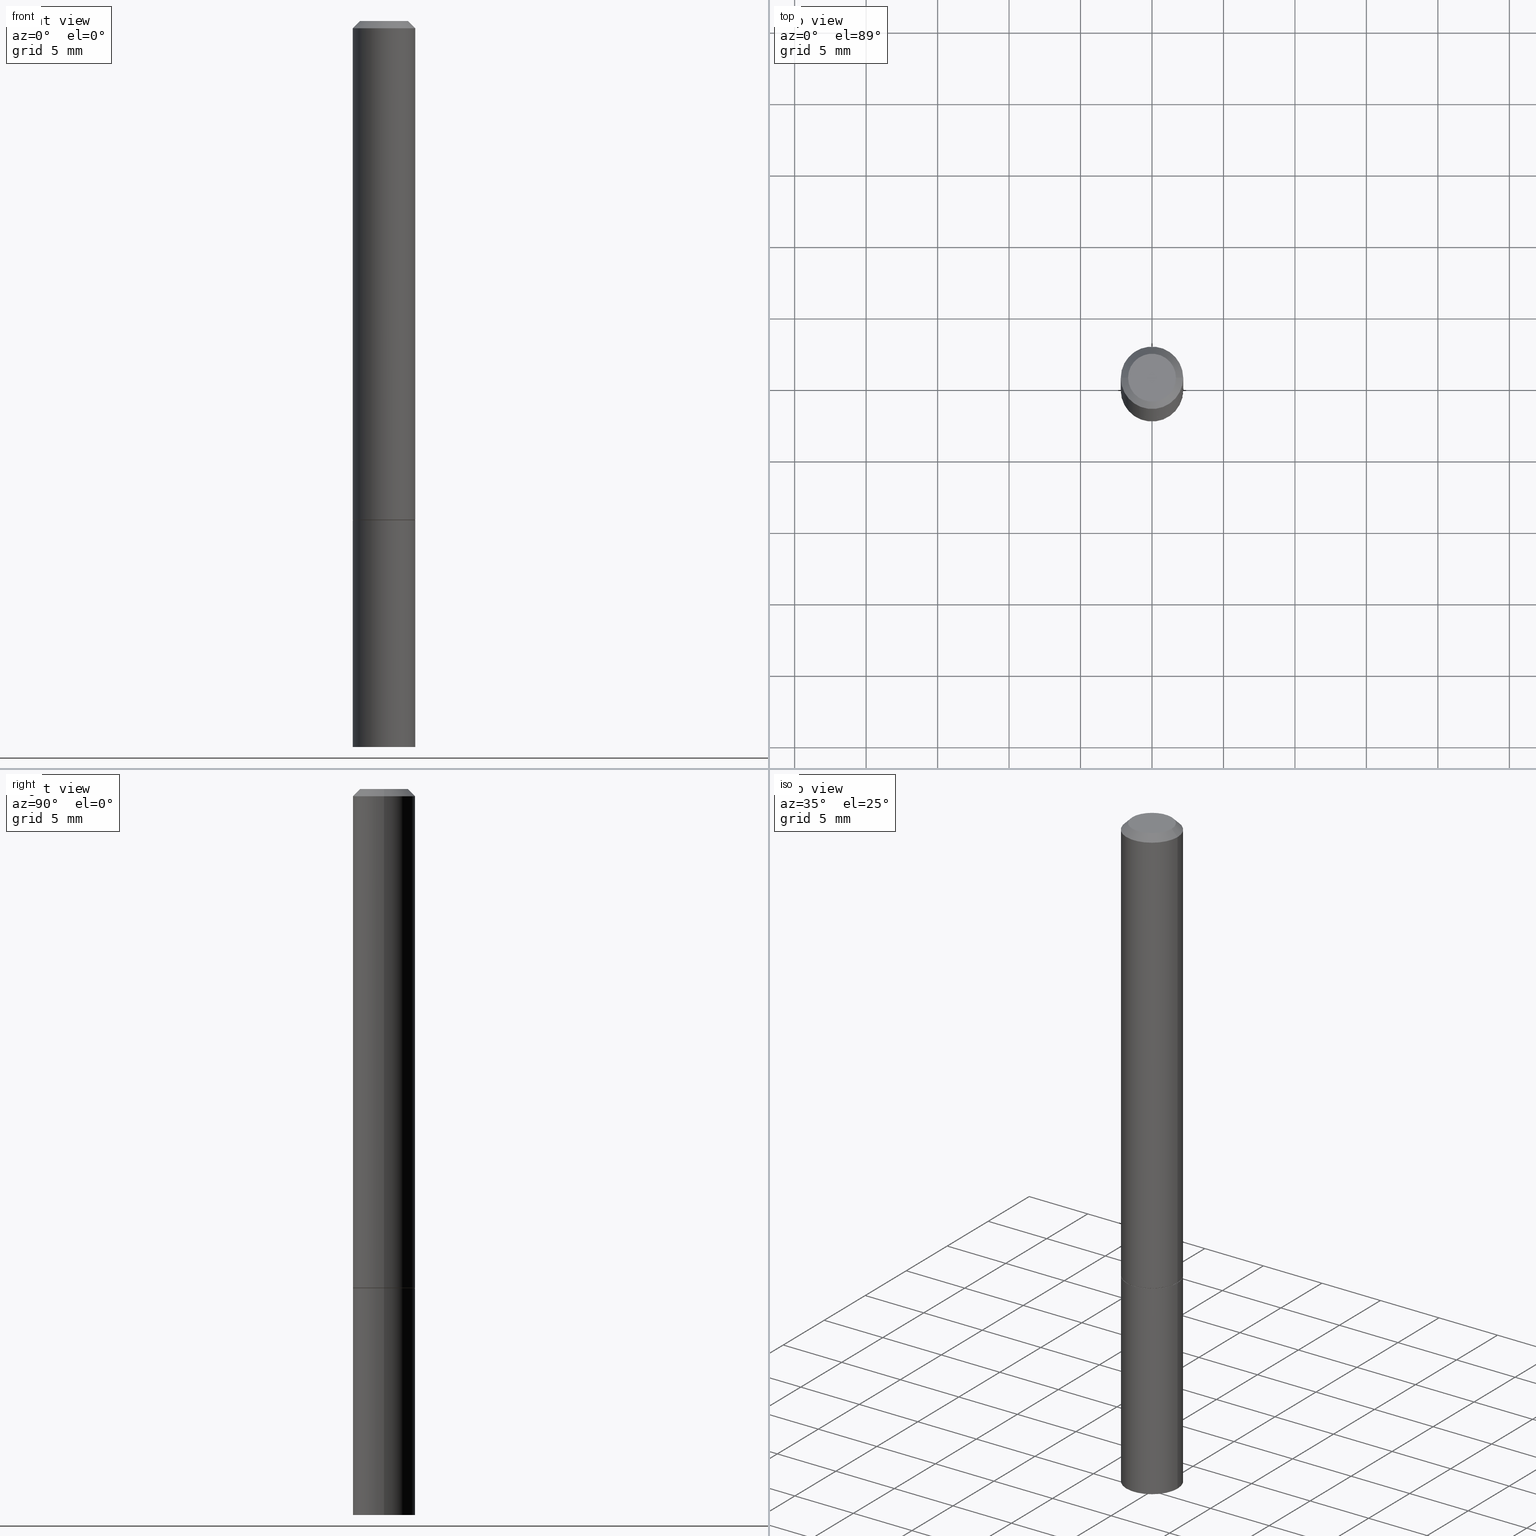
[diagram: canonical four-view strip — front | top / right | iso, engineering-drawing reading convention]
A machine part, canonical four-view strip (front | top / right | iso — engineering-drawing reading convention). The complete STEP part file that produces these views, byte-faithful:
ISO-10303-21;
HEADER;
FILE_DESCRIPTION (( 'STEP AP203' ),
    '1' );
FILE_NAME ('39121.STEP',
    '2023-03-21T20:54:11',
    ( '' ),
    ( '' ),
    'SwSTEP 2.0',
    'SolidWorks 2022',
    '' );
FILE_SCHEMA (( 'CONFIG_CONTROL_DESIGN' ));
ENDSEC;

DATA;
#1 = CARTESIAN_POINT ( 'NONE',  ( 4.879747805633000820E-29, -6.967485112831714072E-15, -1.995495551370623177 ) ) ;
#2 = AXIS2_PLACEMENT_3D ( 'NONE', #16, #259, #106 ) ;
#3 = APPROVAL_PERSON_ORGANIZATION ( #255, #283, #156 ) ;
#4 = APPROVAL_STATUS ( 'not_yet_approved' ) ;
#5 = EDGE_LOOP ( 'NONE', ( #346, #370, #188, #36 ) ) ;
#6 = APPLICATION_CONTEXT ( 'configuration controlled 3d designs of mechanical parts and assemblies' ) ;
#7 = PERSON_AND_ORGANIZATION_ROLE ( 'creator' ) ;
#8 = ORIENTED_EDGE ( 'NONE', *, *, #390, .F. ) ;
#9 = DATE_AND_TIME ( #46, #88 ) ;
#10 = ADVANCED_FACE ( 'NONE', ( #75 ), #275, .T. ) ;
#11 = CIRCLE ( 'NONE', #222, 0.08594999999999998475 ) ;
#12 = DIRECTION ( 'NONE',  ( 1.000000000000000000, -6.982962677686267499E-15, 4.876176775795935793E-29 ) ) ;
#13 = ORIENTED_EDGE ( 'NONE', *, *, #228, .T. ) ;
#14 = ADVANCED_FACE ( 'NONE', ( #194 ), #229, .F. ) ;
#15 = APPROVAL_STATUS ( 'not_yet_approved' ) ;
#16 = CARTESIAN_POINT ( 'NONE',  ( 4.890937612370278413E-31, -6.982962677686297772E-17, -0.02000000000000002123 ) ) ;
#17 = EDGE_CURVE ( 'NONE', #361, #313, #340, .T. ) ;
#18 = DIRECTION ( 'NONE',  ( -2.445468806185136877E-29, 3.491481338843145188E-15, 1.000000000000000000 ) ) ;
#19 = AXIS2_PLACEMENT_3D ( 'NONE', #184, #299, #210 ) ;
#20 = CARTESIAN_POINT ( 'NONE',  ( 0.000000000000000000, 0.000000000000000000, 0.000000000000000000 ) ) ;
#21 = ADVANCED_FACE ( 'NONE', ( #72 ), #318, .T. ) ;
#22 = CARTESIAN_POINT ( 'NONE',  ( -0.08594999999999981821, 5.303560153702704350E-16, -0.02000000000000002123 ) ) ;
#23 = LINE ( 'NONE', #74, #312 ) ;
#24 = CARTESIAN_POINT ( 'NONE',  ( 3.362519608504562260E-29, -4.800786840909324930E-15, -1.375000000000000000 ) ) ;
#25 = VECTOR ( 'NONE', #373, 39.37007874015748143 ) ;
#26 = CONICAL_SURFACE ( 'NONE', #171, 0.08594999999999981821, 0.7853981633974476129 ) ;
#27 = DIMENSIONAL_EXPONENTS ( 1.000000000000000000, 0.000000000000000000, 0.000000000000000000, 0.000000000000000000, 0.000000000000000000, 0.000000000000000000, 0.000000000000000000 ) ;
#28 = CARTESIAN_POINT ( 'NONE',  ( -0.08494999999999998386, -4.191882332532897633E-15, -1.375000000000000000 ) ) ;
#29 = DIRECTION ( 'NONE',  ( 1.000000000000000000, 0.000000000000000000, 0.000000000000000000 ) ) ;
#30 = DIRECTION ( 'NONE',  ( -1.000000000000000000, 6.982962677686265922E-15, -4.876176775795935793E-29 ) ) ;
#31 = ORIENTED_EDGE ( 'NONE', *, *, #292, .F. ) ;
#32 = AXIS2_PLACEMENT_3D ( 'NONE', #281, #277, #344 ) ;
#33 = AXIS2_PLACEMENT_3D ( 'NONE', #293, #180, #29 ) ;
#34 = DIRECTION ( 'NONE',  ( -2.445468806185136597E-29, 3.491481338843145583E-15, 1.000000000000000000 ) ) ;
#35 = ORIENTED_EDGE ( 'NONE', *, *, #17, .T. ) ;
#36 = ORIENTED_EDGE ( 'NONE', *, *, #143, .T. ) ;
#37 = PERSON_AND_ORGANIZATION_ROLE ( 'classification_officer' ) ;
#38 = ORIENTED_EDGE ( 'NONE', *, *, #130, .F. ) ;
#39 = CC_DESIGN_PERSON_AND_ORGANIZATION_ASSIGNMENT ( #311, #37, ( #290 ) ) ;
#40 = COORDINATED_UNIVERSAL_TIME_OFFSET ( 5, 0, .BEHIND. ) ;
#41 = ORIENTED_EDGE ( 'NONE', *, *, #315, .F. ) ;
#42 = CALENDAR_DATE ( 2023, 21, 3 ) ;
#43 = DIRECTION ( 'NONE',  ( 2.445468806185136597E-29, -3.491481338843145583E-15, -1.000000000000000000 ) ) ;
#44 = EDGE_CURVE ( 'NONE', #339, #313, #23, .T. ) ;
#45 = DATE_AND_TIME ( #152, #285 ) ;
#46 = CALENDAR_DATE ( 2023, 21, 3 ) ;
#47 = AXIS2_PLACEMENT_3D ( 'NONE', #309, #43, #157 ) ;
#48 = EDGE_CURVE ( 'NONE', #150, #127, #195, .T. ) ;
#49 = ORIENTED_EDGE ( 'NONE', *, *, #76, .F. ) ;
#50 = CARTESIAN_POINT ( 'NONE',  ( 3.362519608504562260E-29, -4.800786840909324930E-15, -1.375000000000000000 ) ) ;
#51 = CARTESIAN_POINT ( 'NONE',  ( 4.890937612370273194E-29, -6.982962677686291165E-15, -2.000000000000000000 ) ) ;
#52 = ORGANIZATION ( 'UNSPECIFIED', 'UNSPECIFIED', '' ) ;
#53 = DIRECTION ( 'NONE',  ( 1.000000000000000000, -6.982962677686267499E-15, 4.876176775795935793E-29 ) ) ;
#54 = CARTESIAN_POINT ( 'NONE',  ( -0.06594999999999982820, 4.954412019818392789E-16, -3.342610388892703263E-30 ) ) ;
#55 = CARTESIAN_POINT ( 'NONE',  ( -0.08594999999999981821, 5.303560153702704350E-16, -0.02000000000000002123 ) ) ;
#56 = PRODUCT ( '39121', '39121', '', ( #103 ) ) ;
#57 = DIRECTION ( 'NONE',  ( 0.7071067811865469066, -7.319954787623252890E-15, -0.7071067811865479058 ) ) ;
#58 = PRODUCT_DEFINITION ( 'UNKNOWN', '', #196, #212 ) ;
#59 = ORIENTED_EDGE ( 'NONE', *, *, #48, .T. ) ;
#60 = FACE_OUTER_BOUND ( 'NONE', #185, .T. ) ;
#61 =( CONVERSION_BASED_UNIT ( 'INCH', #330 ) LENGTH_UNIT ( ) NAMED_UNIT ( #27 ) );
#62 = EDGE_CURVE ( 'NONE', #191, #121, #170, .T. ) ;
#63 = CARTESIAN_POINT ( 'NONE',  ( 0.08594999999999990148, -7.572622480594752926E-15, -2.000000000000000000 ) ) ;
#64 = ORIENTED_EDGE ( 'NONE', *, *, #169, .F. ) ;
#65 = APPLICATION_PROTOCOL_DEFINITION ( 'international standard', 'config_control_design', 1994, #217 ) ;
#66 = DATE_TIME_ROLE ( 'classification_date' ) ;
#67 = DIRECTION ( 'NONE',  ( 1.000000000000000000, -6.982962677686261977E-15, 0.000000000000000000 ) ) ;
#68 = ORIENTED_EDGE ( 'NONE', *, *, #228, .F. ) ;
#69 = PERSON_AND_ORGANIZATION_ROLE ( 'creator' ) ;
#70 = ORIENTED_EDGE ( 'NONE', *, *, #200, .T. ) ;
#71 = COORDINATED_UNIVERSAL_TIME_OFFSET ( 5, 0, .BEHIND. ) ;
#72 = FACE_OUTER_BOUND ( 'NONE', #279, .T. ) ;
#73 = APPROVAL_DATE_TIME ( #224, #95 ) ;
#74 = CARTESIAN_POINT ( 'NONE',  ( -0.08494999999999998386, -4.197180786881120035E-15, -1.375000000000000000 ) ) ;
#75 = FACE_OUTER_BOUND ( 'NONE', #211, .T. ) ;
#76 = EDGE_CURVE ( 'NONE', #339, #153, #386, .T. ) ;
#77 = VECTOR ( 'NONE', #111, 39.37007874015748143 ) ;
#78 = CC_DESIGN_APPROVAL ( #307, ( #58 ) ) ;
#79 = DIRECTION ( 'NONE',  ( 0.7071067811865232589, -2.468850131082003836E-15, 0.7071067811865715536 ) ) ;
#80 = CARTESIAN_POINT ( 'NONE',  ( -0.08594999999999990148, -6.382777035539157728E-15, -2.000000000000000000 ) ) ;
#81 = LINE ( 'NONE', #377, #136 ) ;
#82 = DIRECTION ( 'NONE',  ( 2.445468806185136597E-29, -3.491481338843145583E-15, -1.000000000000000000 ) ) ;
#83 = DIRECTION ( 'NONE',  ( 1.000000000000000000, -6.982962677686267499E-15, 4.876176775795936353E-29 ) ) ;
#84 = EDGE_CURVE ( 'NONE', #153, #361, #245, .T. ) ;
#85 = LINE ( 'NONE', #176, #366 ) ;
#86 = EDGE_CURVE ( 'NONE', #313, #361, #208, .T. ) ;
#87 = CLOSED_SHELL ( 'NONE', ( #337, #235, #167, #265, #138, #379, #193, #323 ) ) ;
#88 = LOCAL_TIME ( 16, 54, 11.00000000000000000, #40 ) ;
#89 = CARTESIAN_POINT ( 'NONE',  ( 6.001856421471681472E-16, 0.08594999999999519691, -1.375000000000000222 ) ) ;
#90 = UNCERTAINTY_MEASURE_WITH_UNIT (LENGTH_MEASURE( 1.000000000000000082E-05 ), #61, 'distance_accuracy_value', 'NONE');
#91 = LINE ( 'NONE', #145, #314 ) ;
#92 = ORIENTED_EDGE ( 'NONE', *, *, #86, .T. ) ;
#93 = DIRECTION ( 'NONE',  ( 1.000000000000000000, -6.982962677686261977E-15, 0.000000000000000000 ) ) ;
#94 = ORIENTED_EDGE ( 'NONE', *, *, #105, .T. ) ;
#95 = APPROVAL ( #15, 'UNSPECIFIED' ) ;
#96 = AXIS2_PLACEMENT_3D ( 'NONE', #264, #97, #388 ) ;
#97 = DIRECTION ( 'NONE',  ( -2.445468806185136597E-29, 3.491481338843145583E-15, 1.000000000000000000 ) ) ;
#98 = EDGE_CURVE ( 'NONE', #331, #149, #85, .T. ) ;
#99 = ORIENTED_EDGE ( 'NONE', *, *, #143, .F. ) ;
#100 = AXIS2_PLACEMENT_3D ( 'NONE', #204, #108, #53 ) ;
#101 = VERTEX_POINT ( 'NONE', #22 ) ;
#102 = SHAPE_DEFINITION_REPRESENTATION ( #175, #104 ) ;
#103 = MECHANICAL_CONTEXT ( 'NONE', #217, 'mechanical' ) ;
#104 = ADVANCED_BREP_SHAPE_REPRESENTATION ( '39121', ( #128, #384, #33 ), #148 ) ;
#105 = EDGE_CURVE ( 'NONE', #331, #329, #256, .T. ) ;
#106 = DIRECTION ( 'NONE',  ( 1.000000000000000000, -6.982962677686267499E-15, 0.000000000000000000 ) ) ;
#107 = DIRECTION ( 'NONE',  ( -2.445468806185136877E-29, 3.491481338843145188E-15, 1.000000000000000000 ) ) ;
#108 = DIRECTION ( 'NONE',  ( -2.445468806185136597E-29, 3.491481338843145583E-15, 1.000000000000000000 ) ) ;
#109 = DIRECTION ( 'NONE',  ( -2.438088387897960049E-29, 3.491481338843145188E-15, 1.000000000000000000 ) ) ;
#110 = VECTOR ( 'NONE', #325, 39.37007874015748143 ) ;
#111 = DIRECTION ( 'NONE',  ( -2.445468806185136877E-29, 3.491481338843145188E-15, 1.000000000000000000 ) ) ;
#112 = CARTESIAN_POINT ( 'NONE',  ( -0.08594999999999997087, -1.822851011787864341E-15, -1.373999999999999888 ) ) ;
#113 = ORIENTED_EDGE ( 'NONE', *, *, #390, .T. ) ;
#114 = DIRECTION ( 'NONE',  ( -1.000000000000000000, 6.982962677686265922E-15, -4.876176775795935793E-29 ) ) ;
#115 = AXIS2_PLACEMENT_3D ( 'NONE', #51, #378, #354 ) ;
#116 = ORIENTED_EDGE ( 'NONE', *, *, #76, .T. ) ;
#117 = FACE_OUTER_BOUND ( 'NONE', #216, .T. ) ;
#118 = VERTEX_POINT ( 'NONE', #202 ) ;
#119 = DIRECTION ( 'NONE',  ( 1.000000000000000000, -6.982962677686261977E-15, 0.000000000000000000 ) ) ;
#120 = DIRECTION ( 'NONE',  ( 2.445468806185136597E-29, -3.491481338843145583E-15, -1.000000000000000000 ) ) ;
#121 = VERTEX_POINT ( 'NONE', #288 ) ;
#122 = AXIS2_PLACEMENT_3D ( 'NONE', #24, #109, #173 ) ;
#123 = DIRECTION ( 'NONE',  ( 1.000000000000000000, -6.982962677686261977E-15, 0.000000000000000000 ) ) ;
#124 = ORIENTED_EDGE ( 'NONE', *, *, #130, .T. ) ;
#125 = CC_DESIGN_PERSON_AND_ORGANIZATION_ASSIGNMENT ( #345, #163, ( #56 ) ) ;
#126 = PERSON_AND_ORGANIZATION ( #201, #52 ) ;
#127 = VERTEX_POINT ( 'NONE', #140 ) ;
#128 = MANIFOLD_SOLID_BREP ( 'Body-Move/Copy2[1]', #297 ) ;
#129 = APPROVAL_ROLE ( '' ) ;
#130 = EDGE_CURVE ( 'NONE', #313, #101, #260, .T. ) ;
#131 = LOCAL_TIME ( 16, 54, 11.00000000000000000, #71 ) ;
#132 = EDGE_LOOP ( 'NONE', ( #214, #146, #41 ) ) ;
#133 = CC_DESIGN_PERSON_AND_ORGANIZATION_ASSIGNMENT ( #158, #7, ( #196 ) ) ;
#134 = CARTESIAN_POINT ( 'NONE',  ( 0.08594999999999998475, -5.400972483056459156E-15, -1.375000000000000000 ) ) ;
#135 = AXIS2_PLACEMENT_3D ( 'NONE', #240, #34, #93 ) ;
#136 = VECTOR ( 'NONE', #18, 39.37007874015748143 ) ;
#137 = CARTESIAN_POINT ( 'NONE',  ( -0.08594999999999998475, 6.107114813858060014E-16, -4.227824710074091590E-30 ) ) ;
#138 = ADVANCED_FACE ( 'NONE', ( #139 ), #261, .T. ) ;
#139 = FACE_OUTER_BOUND ( 'NONE', #300, .T. ) ;
#140 = CARTESIAN_POINT ( 'NONE',  ( -0.08594999999999998475, -5.281163277912002145E-15, -1.375000000000000000 ) ) ;
#141 = DIRECTION ( 'NONE',  ( 1.000000000000000000, -6.982962677686261977E-15, 0.000000000000000000 ) ) ;
#142 = CONICAL_SURFACE ( 'NONE', #367, 0.08594999999999981821, 0.7853981633974476129 ) ;
#143 = EDGE_CURVE ( 'NONE', #101, #118, #250, .T. ) ;
#144 = FACE_OUTER_BOUND ( 'NONE', #223, .T. ) ;
#145 = CARTESIAN_POINT ( 'NONE',  ( 0.08594999999999981821, -6.594894296853248617E-16, -0.02000000000000002123 ) ) ;
#146 = ORIENTED_EDGE ( 'NONE', *, *, #98, .T. ) ;
#147 = CARTESIAN_POINT ( 'NONE',  ( 4.890937612370278413E-31, -6.982962677686297772E-17, -0.02000000000000002123 ) ) ;
#148 =( GEOMETRIC_REPRESENTATION_CONTEXT ( 3 ) GLOBAL_UNCERTAINTY_ASSIGNED_CONTEXT ( ( #90 ) ) GLOBAL_UNIT_ASSIGNED_CONTEXT ( ( #61, #271, #213 ) ) REPRESENTATION_CONTEXT ( 'NONE', 'WORKASPACE' ) );
#149 = VERTEX_POINT ( 'NONE', #80 ) ;
#150 = VERTEX_POINT ( 'NONE', #134 ) ;
#151 = ORIENTED_EDGE ( 'NONE', *, *, #48, .F. ) ;
#152 = CALENDAR_DATE ( 2023, 21, 3 ) ;
#153 = VERTEX_POINT ( 'NONE', #289 ) ;
#154 = VECTOR ( 'NONE', #349, 39.37007874015748854 ) ;
#155 = ORIENTED_EDGE ( 'NONE', *, *, #206, .F. ) ;
#156 = APPROVAL_ROLE ( '' ) ;
#157 = DIRECTION ( 'NONE',  ( -1.000000000000000000, 6.982962677686265922E-15, 0.000000000000000000 ) ) ;
#158 = PERSON_AND_ORGANIZATION ( #201, #52 ) ;
#159 = CARTESIAN_POINT ( 'NONE',  ( 3.362519608504562260E-29, -4.800786840909324930E-15, -1.375000000000000000 ) ) ;
#160 = ORIENTED_EDGE ( 'NONE', *, *, #249, .T. ) ;
#161 = AXIS2_PLACEMENT_3D ( 'NONE', #221, #165, #342 ) ;
#162 = CONICAL_SURFACE ( 'NONE', #19, 0.08494999999999998386, 0.7853981633974141952 ) ;
#163 = PERSON_AND_ORGANIZATION_ROLE ( 'design_owner' ) ;
#164 = CC_DESIGN_PERSON_AND_ORGANIZATION_ASSIGNMENT ( #192, #190, ( #196 ) ) ;
#165 = DIRECTION ( 'NONE',  ( -2.445468806185136597E-29, 3.491481338843145583E-15, 1.000000000000000000 ) ) ;
#166 = DIRECTION ( 'NONE',  ( -2.445468806185136597E-29, 3.491481338843145583E-15, 1.000000000000000000 ) ) ;
#167 = ADVANCED_FACE ( 'NONE', ( #232 ), #26, .T. ) ;
#168 = FACE_OUTER_BOUND ( 'NONE', #198, .T. ) ;
#169 = EDGE_CURVE ( 'NONE', #191, #101, #380, .T. ) ;
#170 = CIRCLE ( 'NONE', #187, 0.06594999999999982820 ) ;
#171 = AXIS2_PLACEMENT_3D ( 'NONE', #230, #207, #355 ) ;
#172 = DIRECTION ( 'NONE',  ( -2.445468806185136597E-29, 3.491481338843145583E-15, 1.000000000000000000 ) ) ;
#173 = DIRECTION ( 'NONE',  ( 1.000000000000000000, -6.982962677686265922E-15, 4.876176775795935793E-29 ) ) ;
#174 = CARTESIAN_POINT ( 'NONE',  ( 0.08594999999999998475, -6.001856421471345220E-16, 4.191073938796606539E-30 ) ) ;
#175 = PRODUCT_DEFINITION_SHAPE ( 'NONE', 'NONE',  #58 ) ;
#176 = CARTESIAN_POINT ( 'NONE',  ( -2.496334766206191209E-19, -6.967235479355044692E-15, -1.995495551370623177 ) ) ;
#177 = AXIS2_PLACEMENT_3D ( 'NONE', #376, #172, #296 ) ;
#178 = DIRECTION ( 'NONE',  ( 1.000000000000000000, -6.982962677686267499E-15, 4.876176775795936353E-29 ) ) ;
#179 = APPROVAL_PERSON_ORGANIZATION ( #336, #95, #129 ) ;
#180 = DIRECTION ( 'NONE',  ( 0.000000000000000000, 0.000000000000000000, 1.000000000000000000 ) ) ;
#181 = DIRECTION ( 'NONE',  ( -2.445468806185136597E-29, 3.491481338843145583E-15, 1.000000000000000000 ) ) ;
#182 = CC_DESIGN_APPROVAL ( #283, ( #290 ) ) ;
#183 = ORIENTED_EDGE ( 'NONE', *, *, #44, .F. ) ;
#184 = CARTESIAN_POINT ( 'NONE',  ( 3.362519608504562260E-29, -4.800786840909324930E-15, -1.375000000000000000 ) ) ;
#185 = EDGE_LOOP ( 'NONE', ( #59, #113 ) ) ;
#186 = DATE_TIME_ROLE ( 'creation_date' ) ;
#187 = AXIS2_PLACEMENT_3D ( 'NONE', #280, #372, #12 ) ;
#188 = ORIENTED_EDGE ( 'NONE', *, *, #169, .T. ) ;
#189 = CONICAL_SURFACE ( 'NONE', #321, 751.2258538476644389, 1.518436449235073482 ) ;
#190 = PERSON_AND_ORGANIZATION_ROLE ( 'design_supplier' ) ;
#191 = VERTEX_POINT ( 'NONE', #54 ) ;
#192 = PERSON_AND_ORGANIZATION ( #201, #52 ) ;
#193 = ADVANCED_FACE ( 'NONE', ( #199 ), #350, .F. ) ;
#194 = FACE_OUTER_BOUND ( 'NONE', #132, .T. ) ;
#195 = CIRCLE ( 'NONE', #257, 0.08594999999999998475 ) ;
#196 = PRODUCT_DEFINITION_FORMATION_WITH_SPECIFIED_SOURCE ( 'ANY', '', #56, .NOT_KNOWN. ) ;
#197 = CARTESIAN_POINT ( 'NONE',  ( 3.360074139698377778E-29, -4.797295359570481134E-15, -1.373999999999999888 ) ) ;
#198 = EDGE_LOOP ( 'NONE', ( #35, #124, #31, #272 ) ) ;
#199 = FACE_OUTER_BOUND ( 'NONE', #389, .T. ) ;
#200 = EDGE_CURVE ( 'NONE', #153, #339, #251, .T. ) ;
#201 = PERSON ( 'UNSPECIFIED', 'UNSPECIFIED', 'UNSPECIFIED', ('UNSPECIFIED'), ('UNSPECIFIED'), ('UNSPECIFIED') ) ;
#202 = CARTESIAN_POINT ( 'NONE',  ( 0.08594999999999981821, -6.594894296853248617E-16, -0.02000000000000002123 ) ) ;
#203 = AXIS2_PLACEMENT_3D ( 'NONE', #20, #381, #178 ) ;
#204 = CARTESIAN_POINT ( 'NONE',  ( 0.000000000000000000, 0.000000000000000000, 0.000000000000000000 ) ) ;
#205 = LINE ( 'NONE', #137, #269 ) ;
#206 = EDGE_CURVE ( 'NONE', #149, #329, #305, .T. ) ;
#207 = DIRECTION ( 'NONE',  ( 2.445468806185136597E-29, -3.491481338843145583E-15, -1.000000000000000000 ) ) ;
#208 = CIRCLE ( 'NONE', #268, 0.08594999999999998475 ) ;
#209 = ORIENTED_EDGE ( 'NONE', *, *, #262, .T. ) ;
#210 = DIRECTION ( 'NONE',  ( 1.000000000000000000, -6.982962677686261977E-15, 0.000000000000000000 ) ) ;
#211 = EDGE_LOOP ( 'NONE', ( #385, #365, #160, #8 ) ) ;
#212 = DESIGN_CONTEXT ( 'detailed design', #6, 'design' ) ;
#213 =( NAMED_UNIT ( * ) SI_UNIT ( $, .STERADIAN. ) SOLID_ANGLE_UNIT ( ) );
#214 = ORIENTED_EDGE ( 'NONE', *, *, #105, .F. ) ;
#215 = DIRECTION ( 'NONE',  ( -1.000000000000000000, 6.982962677686265922E-15, 0.000000000000000000 ) ) ;
#216 = EDGE_LOOP ( 'NONE', ( #306, #94, #155 ) ) ;
#217 = APPLICATION_CONTEXT ( 'configuration controlled 3d designs of mechanical parts and assemblies' ) ;
#218 = APPROVAL_ROLE ( '' ) ;
#219 = PRODUCT_RELATED_PRODUCT_CATEGORY ( 'detail', '', ( #56 ) ) ;
#220 = VECTOR ( 'NONE', #79, 39.37007874015748854 ) ;
#221 = CARTESIAN_POINT ( 'NONE',  ( 0.000000000000000000, 0.000000000000000000, 0.000000000000000000 ) ) ;
#222 = AXIS2_PLACEMENT_3D ( 'NONE', #291, #181, #119 ) ;
#223 = EDGE_LOOP ( 'NONE', ( #183, #116, #295, #227 ) ) ;
#224 = DATE_AND_TIME ( #368, #353 ) ;
#225 = CARTESIAN_POINT ( 'NONE',  ( 0.08494999999999998386, -5.393989520378773141E-15, -1.375000000000000000 ) ) ;
#226 = COORDINATED_UNIVERSAL_TIME_OFFSET ( 5, 0, .BEHIND. ) ;
#227 = ORIENTED_EDGE ( 'NONE', *, *, #86, .F. ) ;
#228 = EDGE_CURVE ( 'NONE', #121, #191, #274, .T. ) ;
#229 = CONICAL_SURFACE ( 'NONE', #47, 751.2258538476644389, 1.518436449235073482 ) ;
#230 = CARTESIAN_POINT ( 'NONE',  ( 4.890937612370278413E-31, -6.982962677686297772E-17, -0.02000000000000002123 ) ) ;
#231 = FACE_OUTER_BOUND ( 'NONE', #5, .T. ) ;
#232 = FACE_OUTER_BOUND ( 'NONE', #244, .T. ) ;
#233 = APPROVAL_PERSON_ORGANIZATION ( #308, #307, #218 ) ;
#234 = DIRECTION ( 'NONE',  ( -2.445468806185136597E-29, 3.491481338843145583E-15, 1.000000000000000000 ) ) ;
#235 = ADVANCED_FACE ( 'NONE', ( #168 ), #352, .T. ) ;
#236 = DIRECTION ( 'NONE',  ( -2.445468806185136597E-29, 3.491481338843145583E-15, 1.000000000000000000 ) ) ;
#237 = ORIENTED_EDGE ( 'NONE', *, *, #249, .F. ) ;
#238 = PLANE ( 'NONE',  #363 ) ;
#239 = ORIENTED_EDGE ( 'NONE', *, *, #200, .F. ) ;
#240 = CARTESIAN_POINT ( 'NONE',  ( 4.890937612370273194E-29, -6.982962677686291165E-15, -2.000000000000000000 ) ) ;
#241 = ORIENTED_EDGE ( 'NONE', *, *, #62, .T. ) ;
#242 = DIRECTION ( 'NONE',  ( -2.445468806185136597E-29, 3.491481338843145583E-15, 1.000000000000000000 ) ) ;
#243 = CC_DESIGN_APPROVAL ( #95, ( #196 ) ) ;
#244 = EDGE_LOOP ( 'NONE', ( #68, #246, #362, #64 ) ) ;
#245 = LINE ( 'NONE', #225, #220 ) ;
#246 = ORIENTED_EDGE ( 'NONE', *, *, #375, .T. ) ;
#247 = SECURITY_CLASSIFICATION_LEVEL ( 'unclassified' ) ;
#248 = CALENDAR_DATE ( 2023, 21, 3 ) ;
#249 = EDGE_CURVE ( 'NONE', #329, #150, #284, .T. ) ;
#250 = CIRCLE ( 'NONE', #2, 0.08594999999999981821 ) ;
#251 = CIRCLE ( 'NONE', #258, 0.08494999999999998386 ) ;
#252 = EDGE_CURVE ( 'NONE', #361, #118, #81, .T. ) ;
#253 = APPLICATION_PROTOCOL_DEFINITION ( 'international standard', 'config_control_design', 1994, #6 ) ;
#254 = EDGE_LOOP ( 'NONE', ( #241, #13 ) ) ;
#255 = PERSON_AND_ORGANIZATION ( #201, #52 ) ;
#256 = LINE ( 'NONE', #320, #25 ) ;
#257 = AXIS2_PLACEMENT_3D ( 'NONE', #159, #282, #348 ) ;
#258 = AXIS2_PLACEMENT_3D ( 'NONE', #50, #236, #141 ) ;
#259 = DIRECTION ( 'NONE',  ( -2.445468806185136597E-29, 3.491481338843145583E-15, 1.000000000000000000 ) ) ;
#260 = LINE ( 'NONE', #322, #77 ) ;
#261 = CYLINDRICAL_SURFACE ( 'NONE', #203, 0.08594999999999990148 ) ;
#262 = EDGE_CURVE ( 'NONE', #149, #127, #205, .T. ) ;
#263 = CARTESIAN_POINT ( 'NONE',  ( 0.000000000000000000, 0.000000000000000000, 0.000000000000000000 ) ) ;
#264 = CARTESIAN_POINT ( 'NONE',  ( 3.362519608504562260E-29, -4.800786840909324930E-15, -1.375000000000000000 ) ) ;
#265 = ADVANCED_FACE ( 'NONE', ( #231 ), #142, .T. ) ;
#266 = DIRECTION ( 'NONE',  ( 2.438088387897960049E-29, -3.491481338843145188E-15, -1.000000000000000000 ) ) ;
#267 = EDGE_LOOP ( 'NONE', ( #70, #334, #382, #302 ) ) ;
#268 = AXIS2_PLACEMENT_3D ( 'NONE', #197, #166, #67 ) ;
#269 = VECTOR ( 'NONE', #107, 39.37007874015748143 ) ;
#270 = DIRECTION ( 'NONE',  ( 1.000000000000000000, -6.982962677686267499E-15, 0.000000000000000000 ) ) ;
#271 =( NAMED_UNIT ( * ) PLANE_ANGLE_UNIT ( ) SI_UNIT ( $, .RADIAN. ) );
#272 = ORIENTED_EDGE ( 'NONE', *, *, #252, .F. ) ;
#273 = CARTESIAN_POINT ( 'NONE',  ( 1.011582215798658042E-27, -1.444271307094001663E-13, -41.36557429152809817 ) ) ;
#274 = CIRCLE ( 'NONE', #100, 0.06594999999999982820 ) ;
#275 = CYLINDRICAL_SURFACE ( 'NONE', #161, 0.08594999999999998475 ) ;
#276 = COORDINATED_UNIVERSAL_TIME_OFFSET ( 5, 0, .BEHIND. ) ;
#277 = DIRECTION ( 'NONE',  ( -2.445468806185136597E-29, 3.491481338843145583E-15, 1.000000000000000000 ) ) ;
#278 = DATE_AND_TIME ( #42, #131 ) ;
#279 = EDGE_LOOP ( 'NONE', ( #335, #209, #151, #237 ) ) ;
#280 = CARTESIAN_POINT ( 'NONE',  ( 0.000000000000000000, 0.000000000000000000, 0.000000000000000000 ) ) ;
#281 = CARTESIAN_POINT ( 'NONE',  ( 3.360074139698377778E-29, -4.797295359570481134E-15, -1.373999999999999888 ) ) ;
#282 = DIRECTION ( 'NONE',  ( -2.445468806185136597E-29, 3.491481338843145583E-15, 1.000000000000000000 ) ) ;
#283 = APPROVAL ( #347, 'UNSPECIFIED' ) ;
#284 = LINE ( 'NONE', #174, #110 ) ;
#285 = LOCAL_TIME ( 16, 54, 11.00000000000000000, #226 ) ;
#286 = CARTESIAN_POINT ( 'NONE',  ( 4.890937612370278413E-31, -6.982962677686297772E-17, -0.02000000000000002123 ) ) ;
#287 = ADVANCED_FACE ( 'NONE', ( #60 ), #383, .F. ) ;
#288 = CARTESIAN_POINT ( 'NONE',  ( 0.06594999999999982820, -5.559696363191780784E-16, 3.553944287850914187E-30 ) ) ;
#289 = CARTESIAN_POINT ( 'NONE',  ( 0.08494999999999998386, -5.393989520378773141E-15, -1.375000000000000000 ) ) ;
#290 = SECURITY_CLASSIFICATION ( '', '', #247 ) ;
#291 = CARTESIAN_POINT ( 'NONE',  ( 3.362519608504562260E-29, -4.800786840909324930E-15, -1.375000000000000000 ) ) ;
#292 = EDGE_CURVE ( 'NONE', #118, #101, #333, .T. ) ;
#293 = CARTESIAN_POINT ( 'NONE',  ( 0.000000000000000000, 0.000000000000000000, 0.000000000000000000 ) ) ;
#294 = DIRECTION ( 'NONE',  ( 2.438088387897960049E-29, -3.491481338843145188E-15, -1.000000000000000000 ) ) ;
#295 = ORIENTED_EDGE ( 'NONE', *, *, #84, .T. ) ;
#296 = DIRECTION ( 'NONE',  ( 1.000000000000000000, -6.982962677686266711E-15, 4.876176775795936353E-29 ) ) ;
#297 = CLOSED_SHELL ( 'NONE', ( #21, #360, #14, #10, #287 ) ) ;
#298 = CONICAL_SURFACE ( 'NONE', #96, 0.08494999999999998386, 0.7853981633974141952 ) ;
#299 = DIRECTION ( 'NONE',  ( -2.445468806185136597E-29, 3.491481338843145583E-15, 1.000000000000000000 ) ) ;
#300 = EDGE_LOOP ( 'NONE', ( #38, #92, #317, #99 ) ) ;
#301 = CC_DESIGN_DATE_AND_TIME_ASSIGNMENT ( #45, #186, ( #58 ) ) ;
#302 = ORIENTED_EDGE ( 'NONE', *, *, #84, .F. ) ;
#303 = APPROVAL_DATE_TIME ( #343, #283 ) ;
#304 = AXIS2_PLACEMENT_3D ( 'NONE', #263, #234, #83 ) ;
#305 = CIRCLE ( 'NONE', #115, 0.08594999999999998475 ) ;
#306 = ORIENTED_EDGE ( 'NONE', *, *, #98, .F. ) ;
#307 = APPROVAL ( #4, 'UNSPECIFIED' ) ;
#308 = PERSON_AND_ORGANIZATION ( #201, #52 ) ;
#309 = CARTESIAN_POINT ( 'NONE',  ( 1.011582215798658042E-27, -1.444271307094001663E-13, -41.36557429152809817 ) ) ;
#310 = COORDINATED_UNIVERSAL_TIME_OFFSET ( 5, 0, .BEHIND. ) ;
#311 = PERSON_AND_ORGANIZATION ( #201, #52 ) ;
#312 = VECTOR ( 'NONE', #369, 39.37007874015748854 ) ;
#313 = VERTEX_POINT ( 'NONE', #112 ) ;
#314 = VECTOR ( 'NONE', #57, 39.37007874015748854 ) ;
#315 = EDGE_CURVE ( 'NONE', #329, #149, #374, .T. ) ;
#316 = CARTESIAN_POINT ( 'NONE',  ( 3.362519608504562260E-29, -4.800786840909324930E-15, -1.375000000000000000 ) ) ;
#317 = ORIENTED_EDGE ( 'NONE', *, *, #252, .T. ) ;
#318 = CYLINDRICAL_SURFACE ( 'NONE', #177, 0.08594999999999998475 ) ;
#319 = DIRECTION ( 'NONE',  ( -0.9986295347545742773, 6.790662755453666100E-15, -0.05233595624293709697 ) ) ;
#320 = CARTESIAN_POINT ( 'NONE',  ( 2.496334767182175468E-19, -6.967235479355044692E-15, -1.995495551370623177 ) ) ;
#321 = AXIS2_PLACEMENT_3D ( 'NONE', #273, #120, #215 ) ;
#322 = CARTESIAN_POINT ( 'NONE',  ( -0.08594999999999990148, 6.107114813858054097E-16, -4.227824710074086685E-30 ) ) ;
#323 = ADVANCED_FACE ( 'NONE', ( #364 ), #238, .F. ) ;
#324 = DIRECTION ( 'NONE',  ( -1.000000000000000000, 6.982962677686267499E-15, 0.000000000000000000 ) ) ;
#325 = DIRECTION ( 'NONE',  ( -2.445468806185136877E-29, 3.491481338843145188E-15, 1.000000000000000000 ) ) ;
#326 = AXIS2_PLACEMENT_3D ( 'NONE', #316, #338, #123 ) ;
#327 = CC_DESIGN_SECURITY_CLASSIFICATION ( #290, ( #196 ) ) ;
#328 = FACE_OUTER_BOUND ( 'NONE', #267, .T. ) ;
#329 = VERTEX_POINT ( 'NONE', #63 ) ;
#330 = LENGTH_MEASURE_WITH_UNIT ( LENGTH_MEASURE( 0.02539999999999999897 ), #332 );
#331 = VERTEX_POINT ( 'NONE', #1 ) ;
#332 =( LENGTH_UNIT ( ) NAMED_UNIT ( * ) SI_UNIT ( $, .METRE. ) );
#333 = CIRCLE ( 'NONE', #387, 0.08594999999999981821 ) ;
#334 = ORIENTED_EDGE ( 'NONE', *, *, #44, .T. ) ;
#335 = ORIENTED_EDGE ( 'NONE', *, *, #315, .T. ) ;
#336 = PERSON_AND_ORGANIZATION ( #201, #52 ) ;
#337 = ADVANCED_FACE ( 'NONE', ( #328 ), #298, .T. ) ;
#338 = DIRECTION ( 'NONE',  ( -2.445468806185136597E-29, 3.491481338843145583E-15, 1.000000000000000000 ) ) ;
#339 = VERTEX_POINT ( 'NONE', #28 ) ;
#340 = CIRCLE ( 'NONE', #32, 0.08594999999999998475 ) ;
#341 = LOCAL_TIME ( 16, 54, 11.00000000000000000, #276 ) ;
#342 = DIRECTION ( 'NONE',  ( 1.000000000000000000, -6.982962677686266711E-15, 4.876176775795936353E-29 ) ) ;
#343 = DATE_AND_TIME ( #248, #341 ) ;
#344 = DIRECTION ( 'NONE',  ( 1.000000000000000000, -6.982962677686261977E-15, 0.000000000000000000 ) ) ;
#345 = PERSON_AND_ORGANIZATION ( #201, #52 ) ;
#346 = ORIENTED_EDGE ( 'NONE', *, *, #375, .F. ) ;
#347 = APPROVAL_STATUS ( 'not_yet_approved' ) ;
#348 = DIRECTION ( 'NONE',  ( 1.000000000000000000, -6.982962677686261977E-15, 0.000000000000000000 ) ) ;
#349 = DIRECTION ( 'NONE',  ( -0.7071067811865469066, 2.468850131082251144E-15, -0.7071067811865479058 ) ) ;
#350 = PLANE ( 'NONE',  #122 ) ;
#351 = CC_DESIGN_PERSON_AND_ORGANIZATION_ASSIGNMENT ( #126, #69, ( #58 ) ) ;
#352 = CYLINDRICAL_SURFACE ( 'NONE', #304, 0.08594999999999990148 ) ;
#353 = LOCAL_TIME ( 16, 54, 11.00000000000000000, #310 ) ;
#354 = DIRECTION ( 'NONE',  ( 1.000000000000000000, -6.982962677686261977E-15, 0.000000000000000000 ) ) ;
#355 = DIRECTION ( 'NONE',  ( -1.000000000000000000, 6.982962677686267499E-15, 0.000000000000000000 ) ) ;
#356 = CC_DESIGN_DATE_AND_TIME_ASSIGNMENT ( #9, #66, ( #290 ) ) ;
#357 = AXIS2_PLACEMENT_3D ( 'NONE', #89, #294, #30 ) ;
#358 = CARTESIAN_POINT ( 'NONE',  ( 4.605263885934080242E-16, 0.06594999999999982820, -2.302631942967048503E-16 ) ) ;
#359 = CARTESIAN_POINT ( 'NONE',  ( 0.08594999999999998475, -5.397481001717615360E-15, -1.373999999999999888 ) ) ;
#360 = ADVANCED_FACE ( 'NONE', ( #117 ), #189, .F. ) ;
#361 = VERTEX_POINT ( 'NONE', #359 ) ;
#362 = ORIENTED_EDGE ( 'NONE', *, *, #292, .T. ) ;
#363 = AXIS2_PLACEMENT_3D ( 'NONE', #358, #266, #114 ) ;
#364 = FACE_OUTER_BOUND ( 'NONE', #254, .T. ) ;
#365 = ORIENTED_EDGE ( 'NONE', *, *, #206, .T. ) ;
#366 = VECTOR ( 'NONE', #319, 39.37007874015748143 ) ;
#367 = AXIS2_PLACEMENT_3D ( 'NONE', #286, #82, #324 ) ;
#368 = CALENDAR_DATE ( 2023, 21, 3 ) ;
#369 = DIRECTION ( 'NONE',  ( -0.7071067811865232589, 7.493145998870265808E-15, 0.7071067811865715536 ) ) ;
#370 = ORIENTED_EDGE ( 'NONE', *, *, #62, .F. ) ;
#371 = APPROVAL_DATE_TIME ( #278, #307 ) ;
#372 = DIRECTION ( 'NONE',  ( -2.445468806185136597E-29, 3.491481338843145583E-15, 1.000000000000000000 ) ) ;
#373 = DIRECTION ( 'NONE',  ( 0.9986295347545742773, -7.033825938271998700E-15, -0.05233595624293709697 ) ) ;
#374 = CIRCLE ( 'NONE', #135, 0.08594999999999998475 ) ;
#375 = EDGE_CURVE ( 'NONE', #121, #118, #91, .T. ) ;
#376 = CARTESIAN_POINT ( 'NONE',  ( 0.000000000000000000, 0.000000000000000000, 0.000000000000000000 ) ) ;
#377 = CARTESIAN_POINT ( 'NONE',  ( 0.08594999999999990148, -6.001856421471340290E-16, 4.191073938796602335E-30 ) ) ;
#378 = DIRECTION ( 'NONE',  ( -2.445468806185136597E-29, 3.491481338843145583E-15, 1.000000000000000000 ) ) ;
#379 = ADVANCED_FACE ( 'NONE', ( #144 ), #162, .T. ) ;
#380 = LINE ( 'NONE', #55, #154 ) ;
#381 = DIRECTION ( 'NONE',  ( -2.445468806185136597E-29, 3.491481338843145583E-15, 1.000000000000000000 ) ) ;
#382 = ORIENTED_EDGE ( 'NONE', *, *, #17, .F. ) ;
#383 = PLANE ( 'NONE',  #357 ) ;
#384 = MANIFOLD_SOLID_BREP ( 'Body-Move/Copy2[2]', #87 ) ;
#385 = ORIENTED_EDGE ( 'NONE', *, *, #262, .F. ) ;
#386 = CIRCLE ( 'NONE', #326, 0.08494999999999998386 ) ;
#387 = AXIS2_PLACEMENT_3D ( 'NONE', #147, #242, #270 ) ;
#388 = DIRECTION ( 'NONE',  ( 1.000000000000000000, -6.982962677686261977E-15, 0.000000000000000000 ) ) ;
#389 = EDGE_LOOP ( 'NONE', ( #239, #49 ) ) ;
#390 = EDGE_CURVE ( 'NONE', #127, #150, #11, .T. ) ;
ENDSEC;
END-ISO-10303-21;
